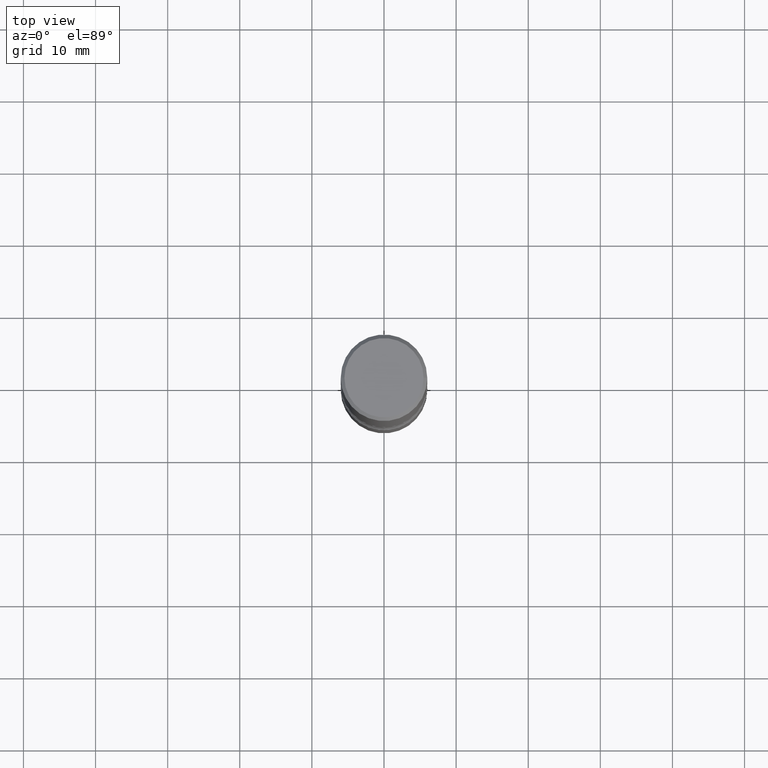
[diagram: clean part render]
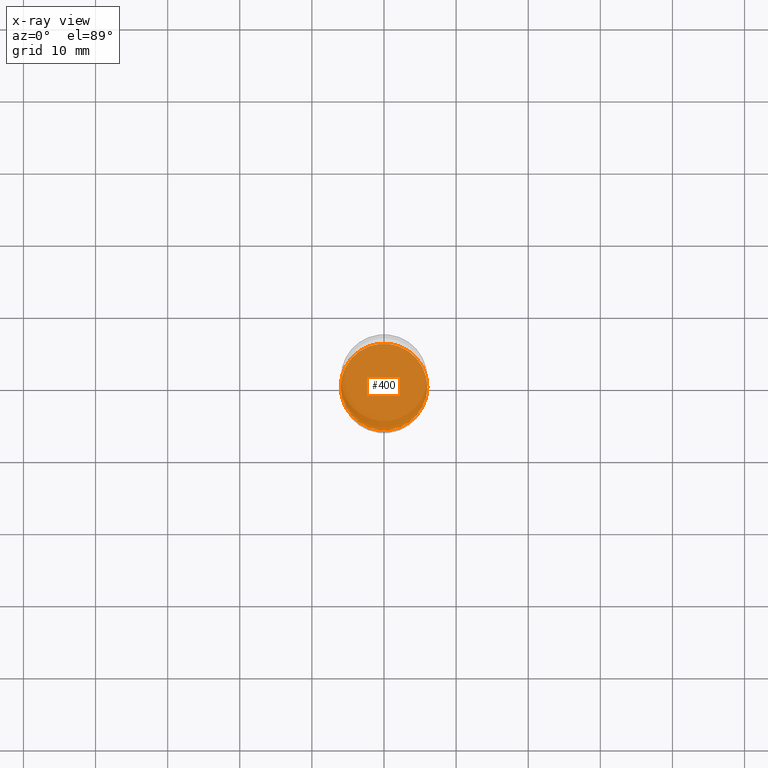
[diagram: x-ray — body ghosted, one internal face saturated and labeled with its STEP entity id]
A machine part, top view, then the same camera in x-ray: the body is ghosted and one INTERNAL B-rep face — a face not visible from any outside direction — is saturated and labeled: STEP entity #400.
In plain terms, the highlighted planar face has unit normal (0, -0, -1).
Its self-contained STEP definition (entity closure, byte-faithful):
#26 = DIRECTION ( 'NONE',  ( -2.445468806185136597E-29, 3.491481338843145583E-15, 1.000000000000000000 ) ) ;
#51 = DIRECTION ( 'NONE',  ( 2.438088387897960049E-29, -3.491481338843145188E-15, -1.000000000000000000 ) ) ;
#58 = AXIS2_PLACEMENT_3D ( 'NONE', #440, #51, #182 ) ;
#75 = AXIS2_PLACEMENT_3D ( 'NONE', #104, #26, #203 ) ;
#77 = CARTESIAN_POINT ( 'NONE',  ( 0.2362000000000001321, -1.182145751705511899E-14, -2.913400000000000212 ) ) ;
#93 = FACE_OUTER_BOUND ( 'NONE', #393, .T. ) ;
#104 = CARTESIAN_POINT ( 'NONE',  ( 7.124628819939777829E-29, -1.017208173258562247E-14, -2.913400000000000212 ) ) ;
#143 = CARTESIAN_POINT ( 'NONE',  ( -0.2362000000000001321, -1.017754666637736977E-14, -2.913400000000000212 ) ) ;
#182 = DIRECTION ( 'NONE',  ( -1.000000000000000000, 6.982962677686265922E-15, -4.876176775795935793E-29 ) ) ;
#203 = DIRECTION ( 'NONE',  ( 1.000000000000000000, -6.982962677686269077E-15, 0.000000000000000000 ) ) ;
#268 = PLANE ( 'NONE',  #58 ) ;
#280 = VERTEX_POINT ( 'NONE', #77 ) ;
#304 = EDGE_CURVE ( 'NONE', #526, #280, #356, .T. ) ;
#318 = ORIENTED_EDGE ( 'NONE', *, *, #304, .T. ) ;
#322 = DIRECTION ( 'NONE',  ( -2.445468806185136597E-29, 3.491481338843145583E-15, 1.000000000000000000 ) ) ;
#347 = ORIENTED_EDGE ( 'NONE', *, *, #447, .T. ) ;
#356 = CIRCLE ( 'NONE', #470, 0.2362000000000001321 ) ;
#393 = EDGE_LOOP ( 'NONE', ( #347, #318 ) ) ;
#400 = ADVANCED_FACE ( 'NONE', ( #93 ), #268, .F. ) ;
#437 = CARTESIAN_POINT ( 'NONE',  ( 7.124628819939777829E-29, -1.017208173258562247E-14, -2.913400000000000212 ) ) ;
#440 = CARTESIAN_POINT ( 'NONE',  ( 7.124628819939777829E-29, -1.017208173258562247E-14, -2.913400000000000212 ) ) ;
#447 = EDGE_CURVE ( 'NONE', #280, #526, #529, .T. ) ;
#470 = AXIS2_PLACEMENT_3D ( 'NONE', #437, #322, #534 ) ;
#526 = VERTEX_POINT ( 'NONE', #143 ) ;
#529 = CIRCLE ( 'NONE', #75, 0.2362000000000001321 ) ;
#534 = DIRECTION ( 'NONE',  ( 1.000000000000000000, -6.982962677686269077E-15, 0.000000000000000000 ) ) ;